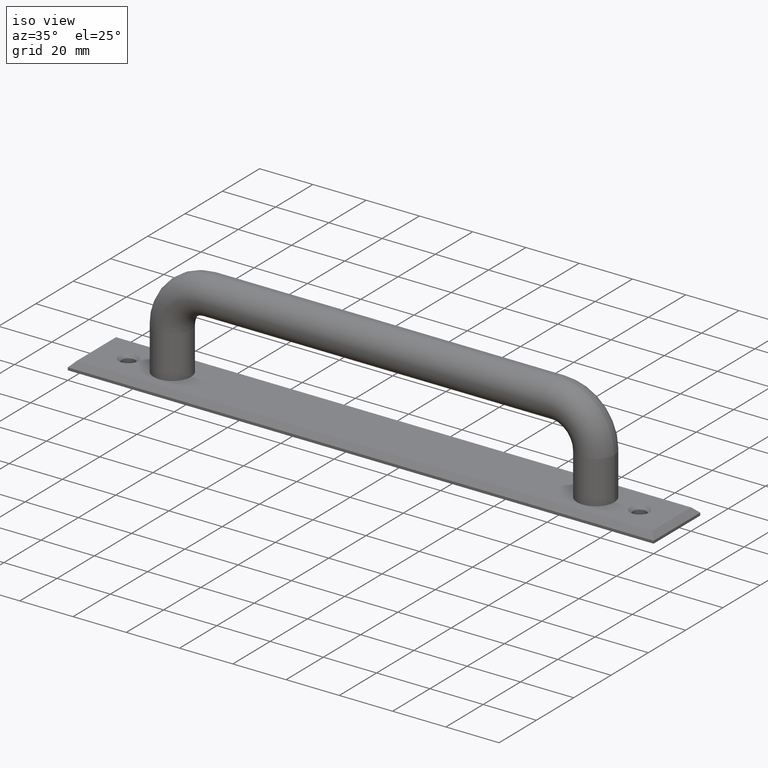
[diagram: clean part render]
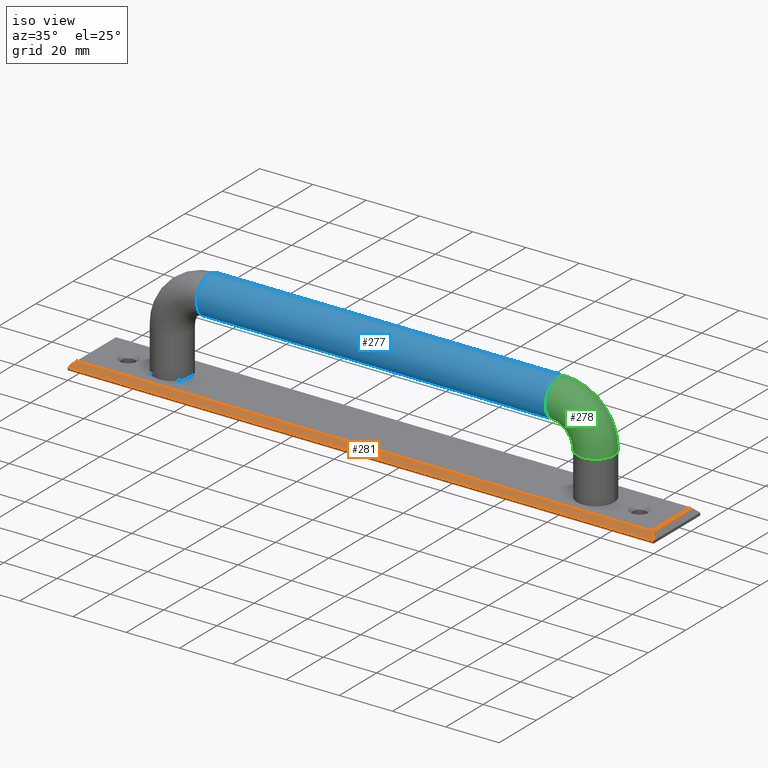
[diagram: same view with three faces highlighted in distinct colors, each labeled with its STEP entity id]
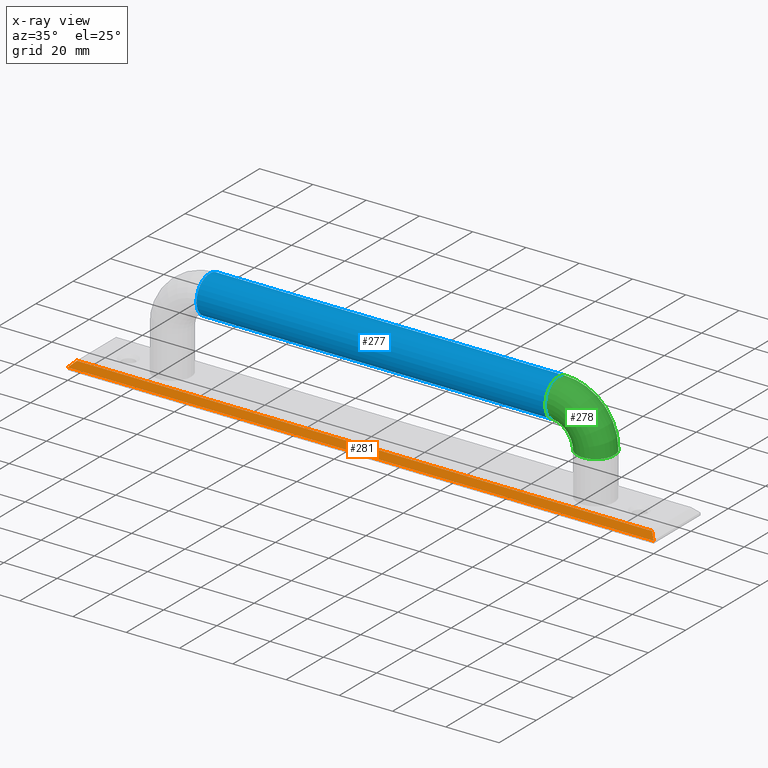
[diagram: x-ray of the same camera — body ghosted, the three highlighted faces saturated]
A machine part, iso view with three faces highlighted in distinct colors.
The next image is the same camera in x-ray (body ghosted, the three faces saturated) — at least one of them is partly hidden behind the body in this view.
Their STEP definitions:

[orange] entity #281 — the highlighted planar face has unit normal (0, -0.7071, 0.7071).
#17=LINE('',#431,#37);
#21=LINE('',#439,#41);
#24=LINE('',#449,#44);
#25=LINE('',#450,#45);
#37=VECTOR('',#352,3.46410161513776);
#41=VECTOR('',#358,216.);
#44=VECTOR('',#367,220.);
#45=VECTOR('',#368,3.46410161513775);
#59=PLANE('',#310);
#91=FACE_OUTER_BOUND('',#119,.T.);
#119=EDGE_LOOP('',(#227,#228,#229,#230));
#155=VERTEX_POINT('',#429);
#156=VERTEX_POINT('',#430);
#159=VERTEX_POINT('',#438);
#163=VERTEX_POINT('',#448);
#179=EDGE_CURVE('',#155,#156,#17,.T.);
#183=EDGE_CURVE('',#159,#156,#21,.T.);
#188=EDGE_CURVE('',#155,#163,#24,.T.);
#189=EDGE_CURVE('',#159,#163,#25,.T.);
#227=ORIENTED_EDGE('',*,*,#179,.F.);
#228=ORIENTED_EDGE('',*,*,#188,.T.);
#229=ORIENTED_EDGE('',*,*,#189,.F.);
#230=ORIENTED_EDGE('',*,*,#183,.T.);
#281=ADVANCED_FACE('',(#91),#59,.T.);
#310=AXIS2_PLACEMENT_3D('',#447,#365,#366);
#352=DIRECTION('',(0.577350269189626,0.577350269189625,0.577350269189626));
#358=DIRECTION('',(-1.,-1.79286569368412E-32,0.));
#365=DIRECTION('center_axis',(1.26774748976076E-32,-0.707106781186548,0.707106781186547));
#366=DIRECTION('ref_axis',(1.,0.,0.));
#367=DIRECTION('',(1.,1.79286569368412E-32,0.));
#368=DIRECTION('',(0.577350269189625,-0.577350269189626,-0.577350269189626));
#429=CARTESIAN_POINT('',(0.,0.,1.));
#430=CARTESIAN_POINT('',(2.,2.,3.));
#431=CARTESIAN_POINT('',(12.9583333333334,12.9583333333333,13.9583333333333));
#438=CARTESIAN_POINT('',(218.,2.,3.));
#439=CARTESIAN_POINT('',(55.,2.,3.));
#447=CARTESIAN_POINT('Origin',(55.,1.,2.));
#448=CARTESIAN_POINT('',(220.,3.94430452610506E-30,1.));
#449=CARTESIAN_POINT('',(55.,0.,1.));
#450=CARTESIAN_POINT('',(190.791666666667,29.2083333333333,30.2083333333333));

[blue] entity #277 — the highlighted cylindrical surface (bore or boss wall) has radius 7 mm, axis along (-1, 0, 0).
#72=FACE_BOUND('',#110,.T.);
#87=FACE_OUTER_BOUND('',#109,.T.);
#109=EDGE_LOOP('',(#211));
#110=EDGE_LOOP('',(#212));
#141=CIRCLE('',#302,7.);
#142=CIRCLE('',#304,7.);
#153=VERTEX_POINT('',#422);
#154=VERTEX_POINT('',#425);
#177=EDGE_CURVE('',#153,#153,#141,.T.);
#178=EDGE_CURVE('',#154,#154,#142,.T.);
#211=ORIENTED_EDGE('',*,*,#177,.T.);
#212=ORIENTED_EDGE('',*,*,#178,.F.);
#271=CYLINDRICAL_SURFACE('',#303,7.);
#277=ADVANCED_FACE('',(#87,#72),#271,.T.);
#302=AXIS2_PLACEMENT_3D('',#423,#342,#343);
#303=AXIS2_PLACEMENT_3D('',#424,#344,#345);
#304=AXIS2_PLACEMENT_3D('',#426,#346,#347);
#342=DIRECTION('center_axis',(1.,0.,3.17206578464331E-16));
#343=DIRECTION('ref_axis',(3.17206578464331E-16,0.,-1.));
#344=DIRECTION('center_axis',(-1.,0.,3.7289933651532E-16));
#345=DIRECTION('ref_axis',(-3.7289933651532E-16,0.,-1.));
#346=DIRECTION('center_axis',(1.,0.,3.17206578464331E-16));
#347=DIRECTION('ref_axis',(3.17206578464331E-16,0.,-1.));
#422=CARTESIAN_POINT('',(44.5,12.5,40.));
#423=CARTESIAN_POINT('Origin',(44.5,12.5,33.0000000000001));
#424=CARTESIAN_POINT('Origin',(175.5,12.5,33.));
#425=CARTESIAN_POINT('',(175.5,12.5,40.));
#426=CARTESIAN_POINT('Origin',(175.5,12.5,33.));

[green] entity #278 — the highlighted toroidal blend (fillet) surface has major radius 14 mm and minor (blend) radius 7 mm.
#68=TOROIDAL_SURFACE('',#305,14.,7.);
#73=FACE_BOUND('',#112,.T.);
#88=FACE_OUTER_BOUND('',#111,.T.);
#111=EDGE_LOOP('',(#213));
#112=EDGE_LOOP('',(#214));
#139=CIRCLE('',#299,7.);
#142=CIRCLE('',#304,7.);
#151=VERTEX_POINT('',#417);
#154=VERTEX_POINT('',#425);
#175=EDGE_CURVE('',#151,#151,#139,.T.);
#178=EDGE_CURVE('',#154,#154,#142,.T.);
#213=ORIENTED_EDGE('',*,*,#178,.T.);
#214=ORIENTED_EDGE('',*,*,#175,.F.);
#278=ADVANCED_FACE('',(#88,#73),#68,.T.);
#299=AXIS2_PLACEMENT_3D('',#418,#336,#337);
#304=AXIS2_PLACEMENT_3D('',#426,#346,#347);
#305=AXIS2_PLACEMENT_3D('',#427,#348,#349);
#336=DIRECTION('center_axis',(0.,0.,-1.));
#337=DIRECTION('ref_axis',(-1.,0.,0.));
#346=DIRECTION('center_axis',(1.,0.,3.17206578464331E-16));
#347=DIRECTION('ref_axis',(3.17206578464331E-16,0.,-1.));
#348=DIRECTION('center_axis',(0.,-1.,0.));
#349=DIRECTION('ref_axis',(0.,0.,-1.));
#417=CARTESIAN_POINT('',(196.5,12.5,19.));
#418=CARTESIAN_POINT('Origin',(189.5,12.5,19.));
#425=CARTESIAN_POINT('',(175.5,12.5,40.));
#426=CARTESIAN_POINT('Origin',(175.5,12.5,33.));
#427=CARTESIAN_POINT('Origin',(175.5,12.5,19.));